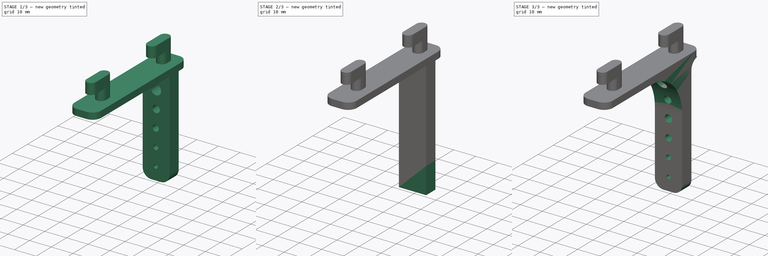
[diagram: build sequence overview — one tinted view per stage of 3, left to right]
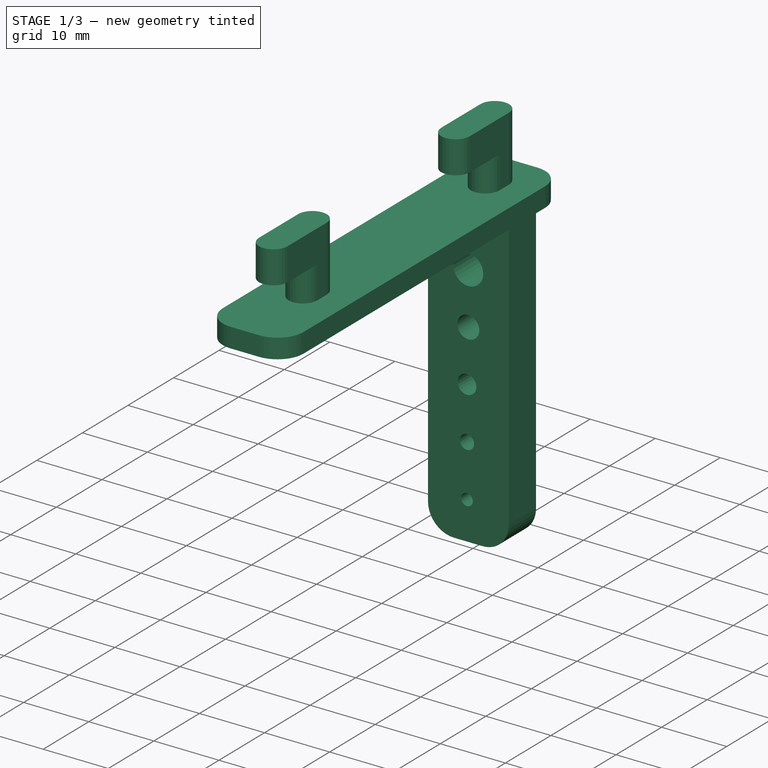
[diagram: stage 1 of 3 — iso view after this stage's code; geometry added in this stage tinted green]
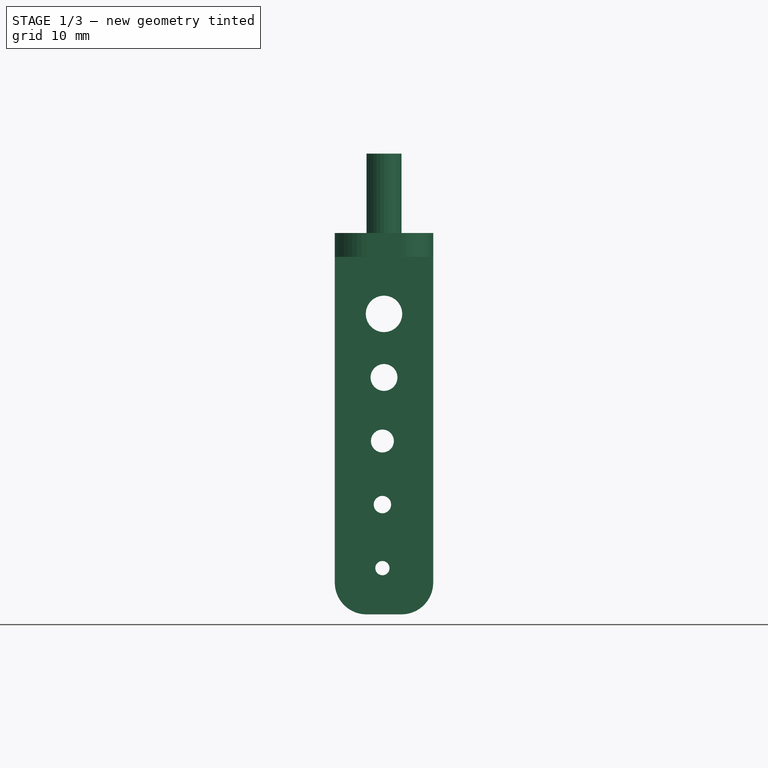
[diagram: stage 1 of 3 — front view after this stage's code; geometry added in this stage tinted green]
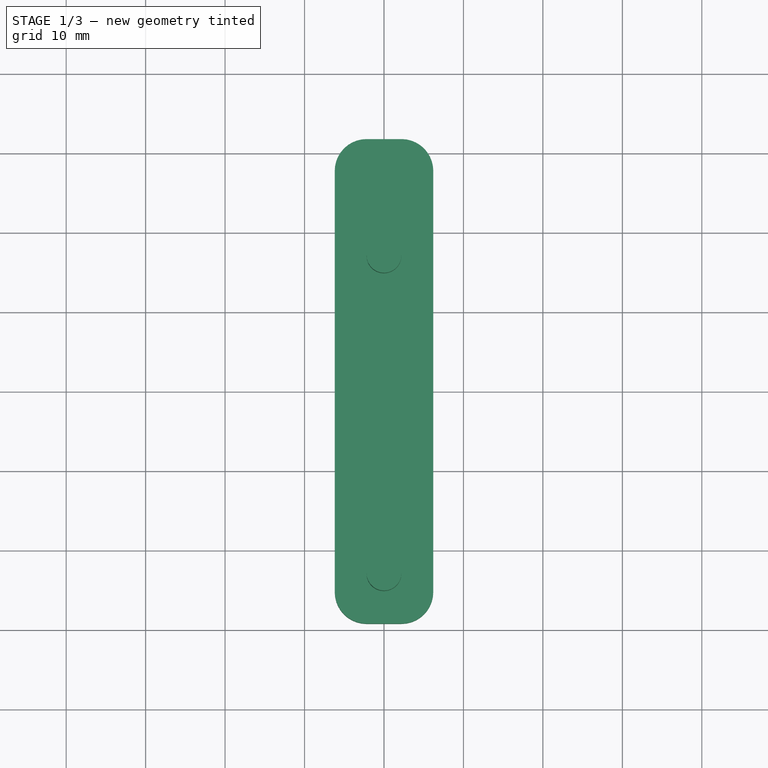
[diagram: stage 1 of 3 — top view after this stage's code; geometry added in this stage tinted green]
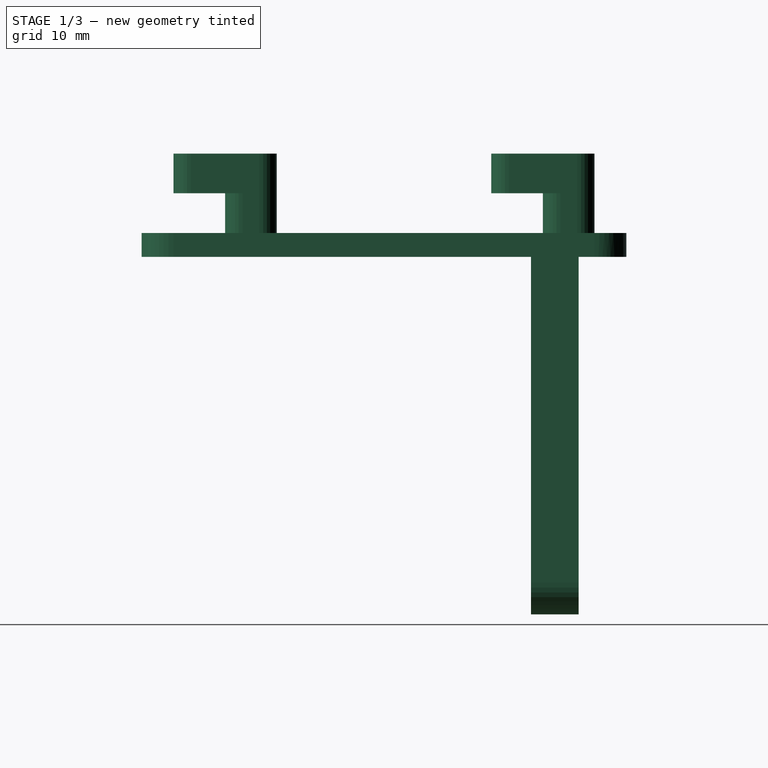
[diagram: stage 1 of 3 — right view after this stage's code; geometry added in this stage tinted green]
FCSTD DOCUMENT  (FreeCAD 1.0R39109 (Git))
Label: 00_Allen_Key_Mount
License: All rights reserved
LicenseURL: https://en.wikipedia.org/wiki/All_rights_reserved
objects: Sketcher::SketchObject×4, PartDesign::Pocket×2, PartDesign::Pad×2, Part::Feature×1, PartDesign::FeatureBase×1, PartDesign::Body×1
note: 24 computed .brp shape members not serialized (recipe doc carries the construction recipe); baked Part::Feature solids carry a one-line shape summary decoded from their .brp

FEATURE [Part::Feature] allen_key_holder001_solid004  label="allen_key_holder001 (Solid)004"
  shape: bbox 12.4 x 61 x 58 mm, 534 faces (baked)
FEATURE [PartDesign::FeatureBase] BaseFeature
  BaseFeature = -> allen_key_holder001_solid004
  Placement = pos=(-2.2,-36,3) rot=(0,0,1;0rad)
  Suppressed = false
FEATURE [Sketcher::SketchObject] Sketch
  ArcFitTolerance = 1e-06
  AttachmentSupport = -> [BaseFeature]
  FullyConstrained = true
  MakeInternals = false
  MapMode = 5
  Placement = pos=(6.2,-36,3) rot=(0.57735,0.57735,0.57735;2.0944rad)
  sketch-geometry (8):
    g0: LineSegment StartX=36 StartY=-3 StartZ=0 EndX=36 EndY=-48 EndZ=0
    g1: LineSegment StartX=36 StartY=-48 StartZ=0 EndX=85 EndY=-48 EndZ=0
    g2: LineSegment StartX=85 StartY=-48 StartZ=0 EndX=85 EndY=-3 EndZ=0
    g3: LineSegment StartX=85 StartY=-3 StartZ=0 EndX=36 EndY=-3 EndZ=0
    g4: LineSegment StartX=91 StartY=-3 StartZ=0 EndX=91 EndY=-48 EndZ=0
    g5: LineSegment StartX=91 StartY=-48 StartZ=0 EndX=97 EndY=-48 EndZ=0
    g6: LineSegment StartX=97 StartY=-48 StartZ=0 EndX=97 EndY=-3 EndZ=0
    g7: LineSegment StartX=97 StartY=-3 StartZ=0 EndX=91 EndY=-3 EndZ=0
  constraints (24):
    c: Coincident(g0,g1)
    c: Coincident(g1,g2)
    c: Coincident(g2,g3)
    c: Coincident(g3,g0)
    c: Vertical(g0)
    c: Vertical(g2)
    c: Horizontal(g1)
    c: Horizontal(g3)
    c: Distance(g0,g2) = 49
    c: Distance(g1,g3) = 45
    c: DistanceY(g0,g-1) = 3
    c: DistanceX(g-1,g0) = 36
    c: Coincident(g4,g5)
    c: Coincident(g5,g6)
    c: Coincident(g6,g7)
    c: Coincident(g7,g4)
    c: Vertical(g4)
    c: Vertical(g6)
    c: Horizontal(g5)
    c: Horizontal(g7)
    c: Distance(g4,g6) = 6
    c: Distance(g5,g7) = 45
    c: DistanceY(g4,g-1) = 3
    c: DistanceX(g-1,g4) = 91
FEATURE [PartDesign::Pocket] Pocket
  BaseFeature = -> BaseFeature
  Direction = (-1,0,0)
  Length = 13
  Length2 = 5
  Placement = pos=(-2.2,-36,3) rot=(0,0,1;0rad)
  Profile = -> Sketch
  ReferenceAxis = -> Sketch [N_Axis]
  Refine = true
  Suppressed = false
  Type = 0
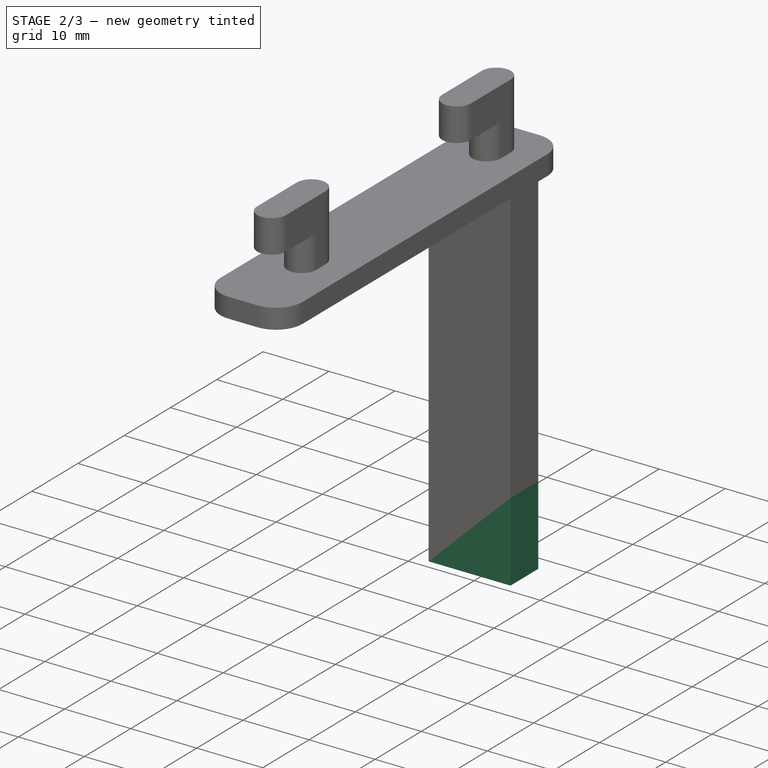
[diagram: stage 2 of 3 — iso view after this stage's code; geometry added in this stage tinted green]
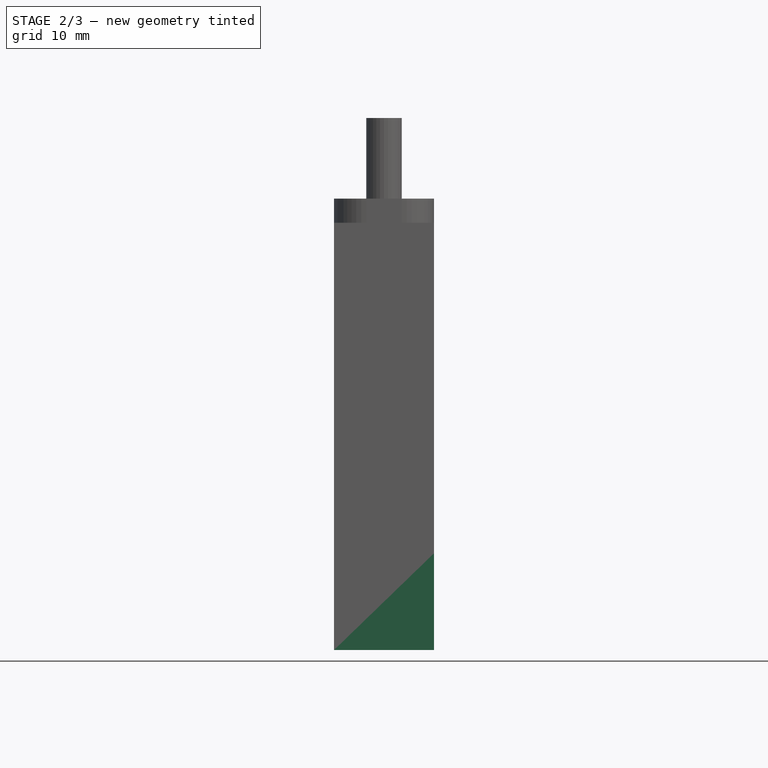
[diagram: stage 2 of 3 — front view after this stage's code; geometry added in this stage tinted green]
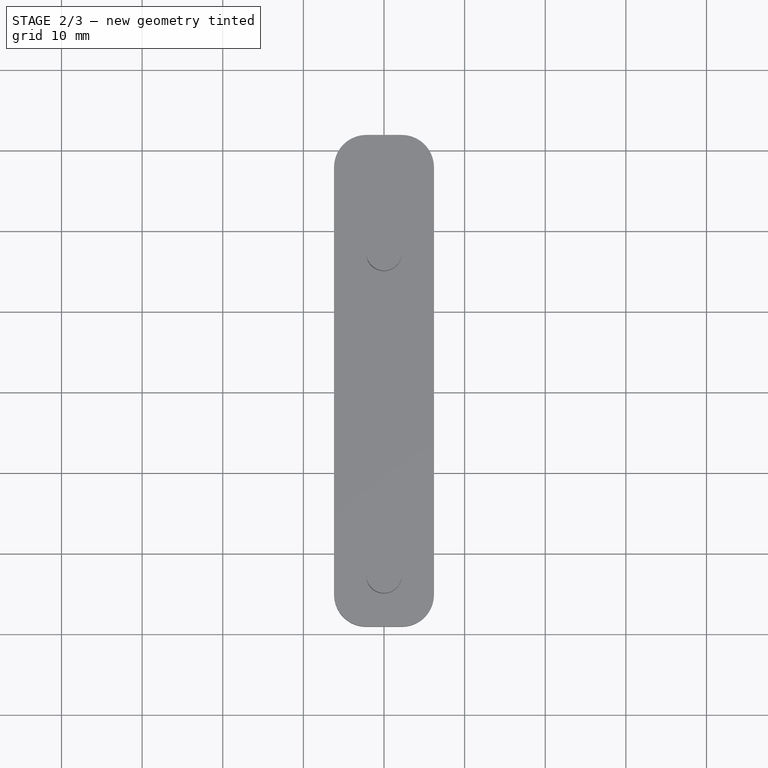
[diagram: stage 2 of 3 — top view after this stage's code; geometry added in this stage tinted green]
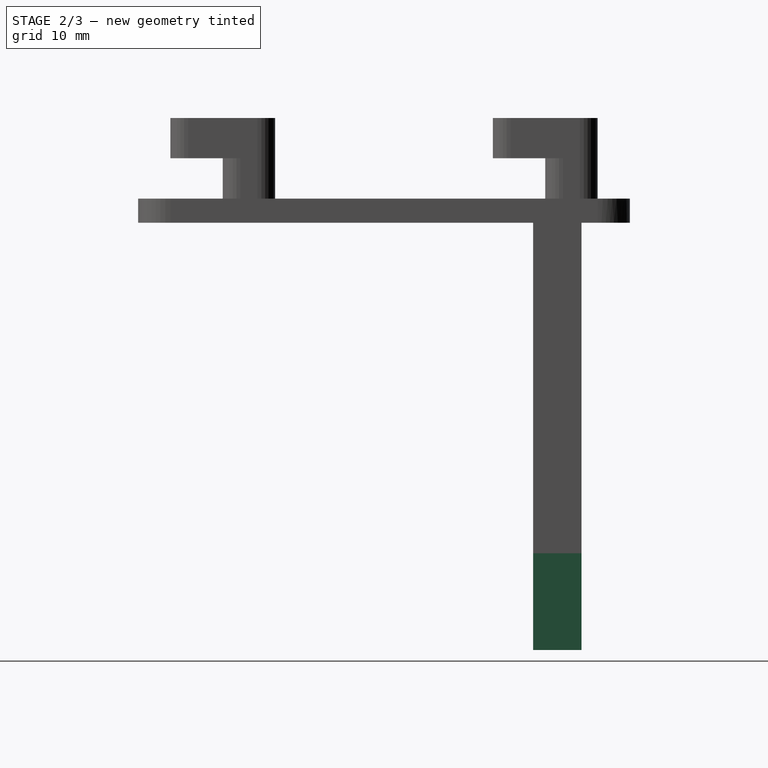
[diagram: stage 2 of 3 — right view after this stage's code; geometry added in this stage tinted green]
FEATURE [Sketcher::SketchObject] Sketch001
  ArcFitTolerance = 1e-06
  AttachmentSupport = -> [Pocket]
  FullyConstrained = true
  MakeInternals = false
  MapMode = 5
  Placement = pos=(-2.2,49,3) rot=(1,0,0;1.5708rad)
  sketch-geometry (4):
    g0: LineSegment StartX=-4 StartY=-3 StartZ=0 EndX=-4 EndY=-56 EndZ=0
    g1: LineSegment StartX=-4 StartY=-56 StartZ=0 EndX=8.4 EndY=-56 EndZ=0
    g2: LineSegment StartX=8.4 StartY=-56 StartZ=0 EndX=8.4 EndY=-3 EndZ=0
    g3: LineSegment StartX=8.4 StartY=-3 StartZ=0 EndX=-4 EndY=-3 EndZ=0
  constraints (12):
    c: Coincident(g0,g1)
    c: Coincident(g1,g2)
    c: Coincident(g2,g3)
    c: Coincident(g3,g0)
    c: Vertical(g0)
    c: Vertical(g2)
    c: Horizontal(g1)
    c: Horizontal(g3)
    c: Distance(g0,g2) = 12.4
    c: Distance(g1,g3) = 53
    c: DistanceY(g0,g-1) = 3
    c: DistanceX(g-1,g2) = 8.4
FEATURE [PartDesign::Pad] Pad
  BaseFeature = -> Pocket
  Direction = (0,-1,2e-16)
  Length = 6
  Length2 = 10
  Placement = pos=(-2.2,-36,3) rot=(0,0,1;0rad)
  Profile = -> Sketch001
  ReferenceAxis = -> Sketch001 [N_Axis]
  Refine = true
  Reversed = true
  Suppressed = false
  Type = 0
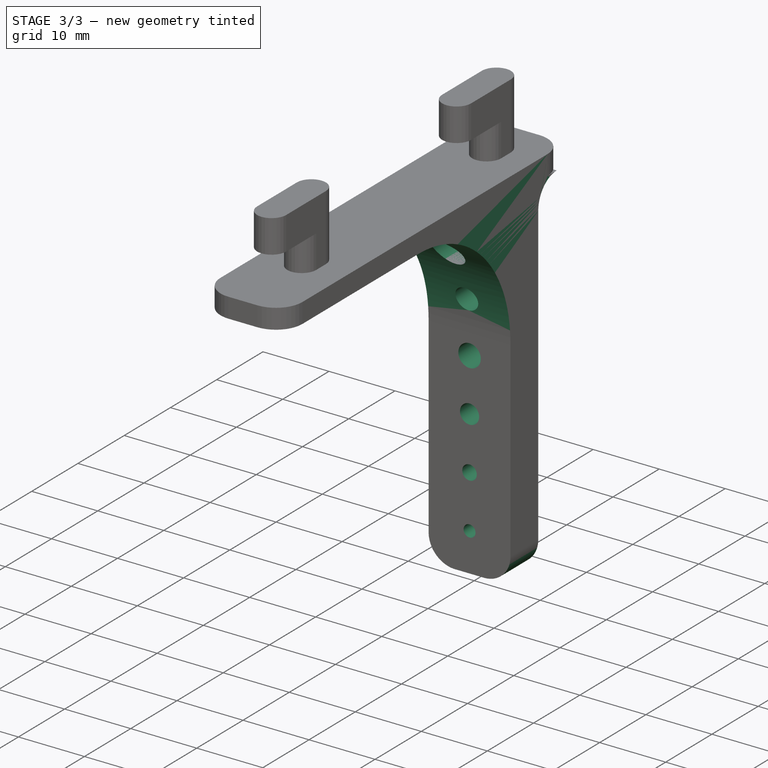
[diagram: stage 3 of 3 — iso view after this stage's code; geometry added in this stage tinted green]
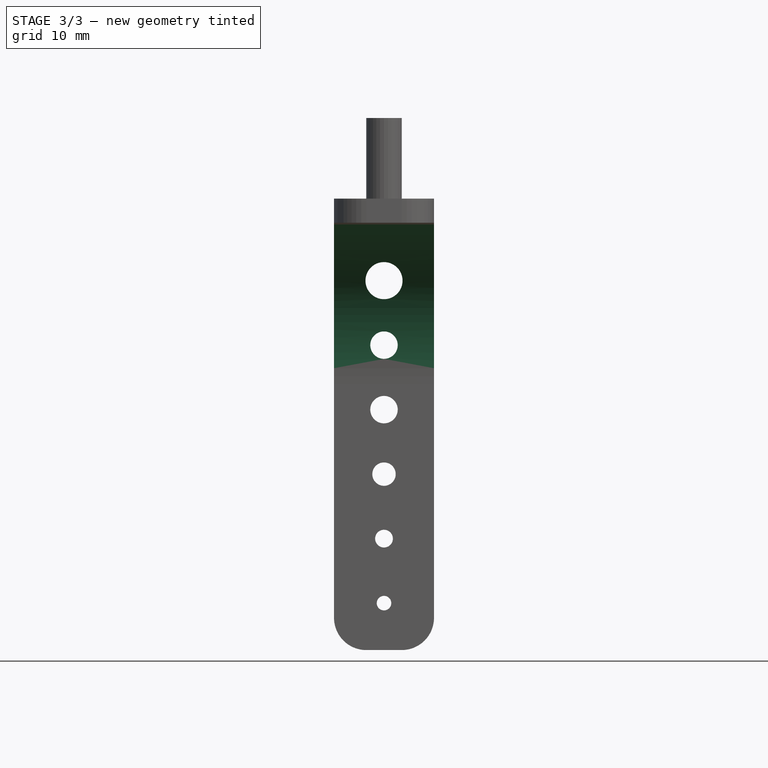
[diagram: stage 3 of 3 — front view after this stage's code; geometry added in this stage tinted green]
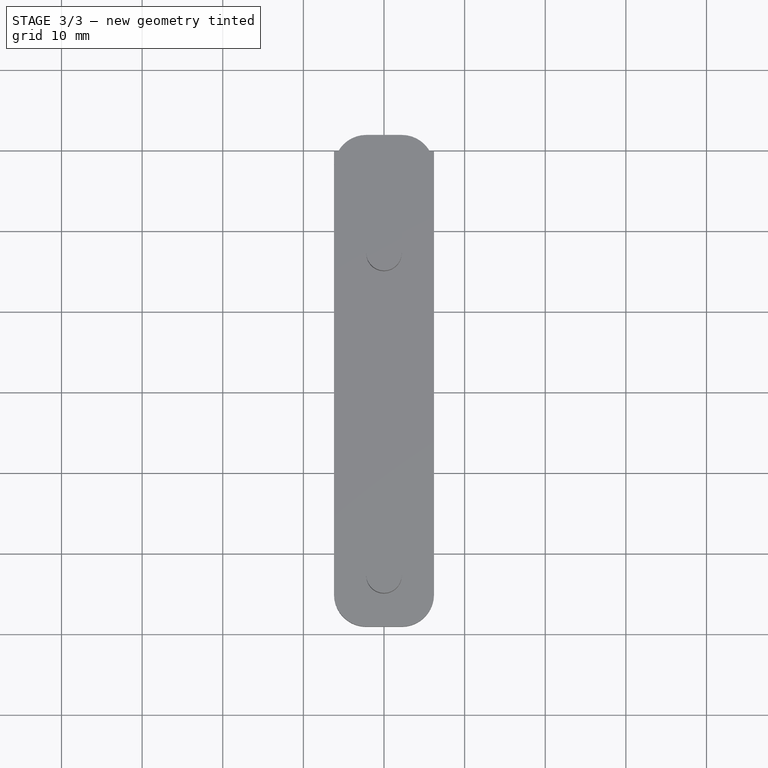
[diagram: stage 3 of 3 — top view after this stage's code; geometry added in this stage tinted green]
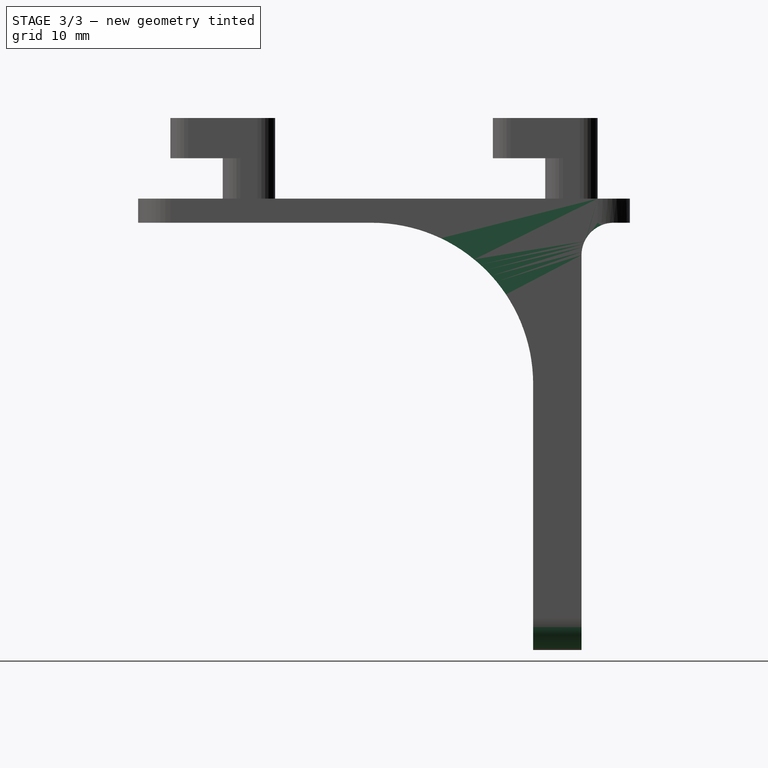
[diagram: stage 3 of 3 — right view after this stage's code; geometry added in this stage tinted green]
FEATURE [Sketcher::SketchObject] Sketch002
  ArcFitTolerance = 1e-06
  AttachmentSupport = -> [Pad]
  FullyConstrained = true
  MakeInternals = false
  MapMode = 5
  Placement = pos=(6.2,-36,3) rot=(0.57735,0.57735,0.57735;2.0944rad)
  sketch-geometry (6):
    g0: LineSegment StartX=65 StartY=-3 StartZ=0 EndX=85 EndY=-3 EndZ=0
    g1: LineSegment StartX=85 StartY=-3 StartZ=0 EndX=85 EndY=-23 EndZ=0
    g2: LineSegment StartX=91 StartY=-3 StartZ=0 EndX=95 EndY=-3 EndZ=0
    g3: LineSegment StartX=91 StartY=-3 StartZ=0 EndX=91 EndY=-7 EndZ=0
    g4: ArcOfCircle CenterX=65 CenterY=-23 CenterZ=0 NormalX=0 NormalY=0 NormalZ=1 AngleXU=0 Radius=20 StartAngle=4e-16 EndAngle=1.5708
    g5: ArcOfCircle CenterX=95 CenterY=-7 CenterZ=0 NormalX=0 NormalY=0 NormalZ=1 AngleXU=0 Radius=4 StartAngle=1.5708 EndAngle=3.14159
  constraints (20):
    c: Distance(g0) = 20
    c: Horizontal(g0)
    c: Distance(g1) = 20
    c: Vertical(g1)
    c: Coincident(g1,g0)
    c: DistanceY(g0,g-1) = 3
    c: DistanceX(g-1,g0) = 85
    c: Distance(g2) = 4
    c: Horizontal(g2)
    c: Distance(g3) = 4
    c: Vertical(g3)
    c: Coincident(g3,g2)
    c: DistanceX(g-1,g2) = 91
    c: DistanceY(g2,g-1) = 3
    c: Radius(g4) = 20
    c: Coincident(g4,g0)
    c: Coincident(g4,g1)
    c: Radius(g5) = 4
    c: Coincident(g3,g5)
    c: Coincident(g5,g2)
FEATURE [PartDesign::Pad] Pad001
  BaseFeature = -> Pad
  Direction = (1,0,0)
  Length = 12.4
  Length2 = 10
  Placement = pos=(-2.2,-36,3) rot=(0,0,1;0rad)
  Profile = -> Sketch002
  ReferenceAxis = -> Sketch002 [N_Axis]
  Refine = true
  Reversed = true
  Suppressed = false
  Type = 0
FEATURE [Sketcher::SketchObject] Sketch003
  ArcFitTolerance = 1e-06
  AttachmentSupport = -> [Pad001]
  FullyConstrained = true
  MakeInternals = false
  MapMode = 5
  Placement = pos=(-2.2,55,3) rot=(0,0.707107,0.707107;3.14159rad)
  sketch-geometry (12):
    g0: Circle CenterX=-2.2 CenterY=-10.18 CenterZ=0 NormalX=0 NormalY=0 NormalZ=1 AngleXU=0 Radius=2.3
    g1: Circle CenterX=-2.2 CenterY=-18.18 CenterZ=0 NormalX=0 NormalY=0 NormalZ=1 AngleXU=0 Radius=1.7
    g2: Circle CenterX=-2.2 CenterY=-26.18 CenterZ=0 NormalX=0 NormalY=0 NormalZ=1 AngleXU=0 Radius=1.7
    g3: Circle CenterX=-2.2 CenterY=-34.18 CenterZ=0 NormalX=0 NormalY=0 NormalZ=1 AngleXU=0 Radius=1.45
    g4: Circle CenterX=-2.2 CenterY=-42.18 CenterZ=0 NormalX=0 NormalY=0 NormalZ=1 AngleXU=0 Radius=1.1
    g5: Circle CenterX=-2.2 CenterY=-50.18 CenterZ=0 NormalX=0 NormalY=0 NormalZ=1 AngleXU=0 Radius=0.9
    g6: LineSegment StartX=-8.4 StartY=-52 StartZ=0 EndX=-8.4 EndY=-56 EndZ=0
    g7: LineSegment StartX=-8.4 StartY=-56 StartZ=0 EndX=-4.4 EndY=-56 EndZ=0
    g8: LineSegment StartX=4 StartY=-52 StartZ=0 EndX=4 EndY=-56 EndZ=0
    g9: LineSegment StartX=4 StartY=-56 StartZ=0 EndX=-1.3e-15 EndY=-56 EndZ=0
    g10: ArcOfCircle CenterX=-4.4 CenterY=-52 CenterZ=0 NormalX=0 NormalY=0 NormalZ=1 AngleXU=0 Radius=4 StartAngle=3.14159 EndAngle=4.71239
    g11: ArcOfCircle CenterX=-4e-16 CenterY=-52 CenterZ=0 NormalX=0 NormalY=0 NormalZ=1 AngleXU=0 Radius=4 StartAngle=4.71239 EndAngle=6.28319
  constraints (38):
    c: Diameter(g0) = 4.6
    c: DistanceY(g0,g-1) = 10.18
    c: DistanceX(g0,g-1) = 2.2
    c: Diameter(g1) = 3.4
    c: Diameter(g2) = 3.4
    c: Diameter(g3) = 2.9
    c: Diameter(g4) = 2.2
    c: Diameter(g5) = 1.8
    c: DistanceY(g1,g0) = 8
    c: DistanceY(g2,g1) = 8
    c: DistanceY(g3,g2) = 8
    c: DistanceY(g4,g3) = 8
    c: DistanceY(g5,g4) = 8
    c: DistanceX(g0,g1) = 0
    c: DistanceX(g1,g2) = 0
    c: DistanceX(g2,g3) = 0
    c: DistanceX(g3,g4) = 0
    c: DistanceX(g4,g5) = 0
    c: Distance(g6) = 4
    c: Vertical(g6)
    c: Distance(g7) = 4
    c: Horizontal(g7)
    c: Coincident(g7,g6)
    c: Distance(g8) = 4
    c: Vertical(g8)
    c: Distance(g9) = 4
    c: Horizontal(g9)
    c: Coincident(g9,g8)
    c: DistanceY(g7,g5) = 5.82
    c: DistanceY(g9,g5) = 5.82
    c: DistanceX(g6,g5) = 6.2
    c: DistanceX(g5,g8) = 6.2
    c: Coincident(g10,g6)
    c: Coincident(g10,g7)
    c: Coincident(g11,g8)
    c: Coincident(g11,g9)
    c: DistanceY(g7,g10) = 4
    c: DistanceY(g9,g11) = 4
FEATURE [PartDesign::Pocket] Pocket001
  BaseFeature = -> Pad001
  Direction = (0,-1,2e-16)
  Length = 5
  Length2 = 5
  Placement = pos=(-2.2,-36,3) rot=(0,0,1;0rad)
  Profile = -> Sketch003
  ReferenceAxis = -> Sketch003 [N_Axis]
  Refine = true
  Suppressed = false
  Type = 1
FEATURE [PartDesign::Body] Body
  AllowCompound = false
  BaseFeature = -> allen_key_holder001_solid004
  Group = -> [BaseFeature,Sketch,Pocket,Sketch001,Pad,Sketch002,Pad001,Sketch003,Pocket001]
  Origin = -> Origin
  Tip = -> Pocket001
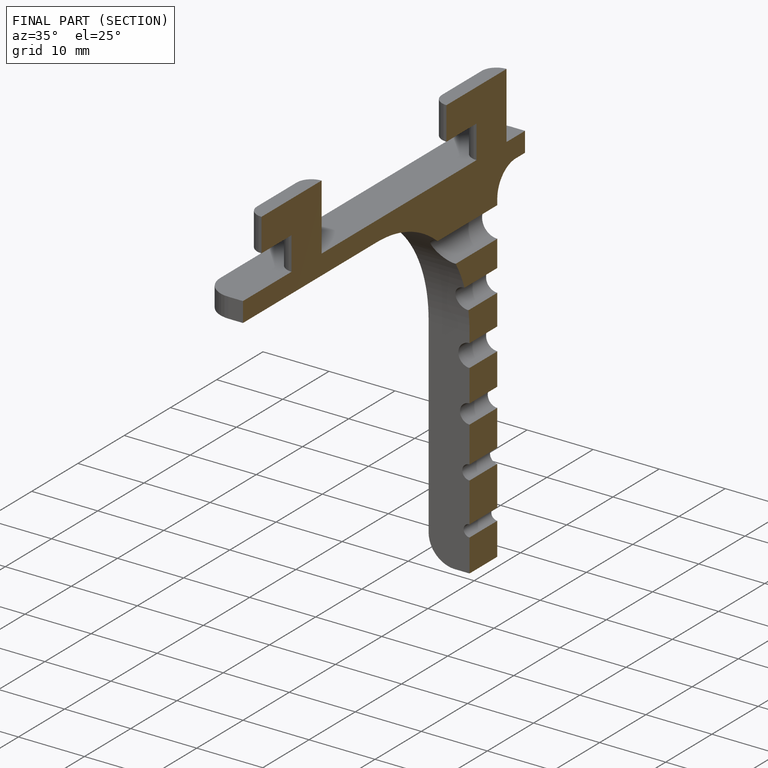
[diagram: finished part — half-section view (interior)]
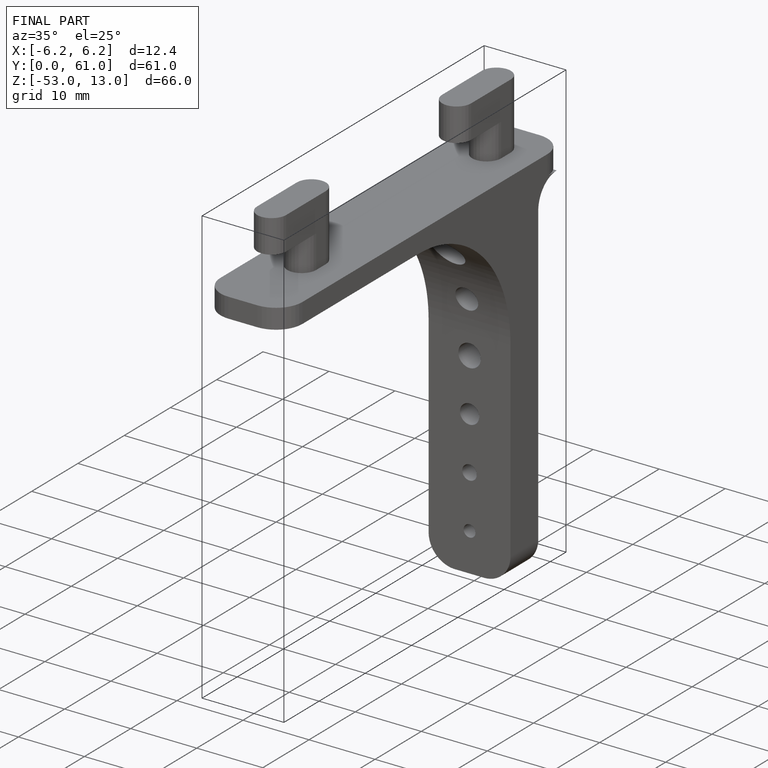
[diagram: finished part — iso view with bounding-box wireframe]
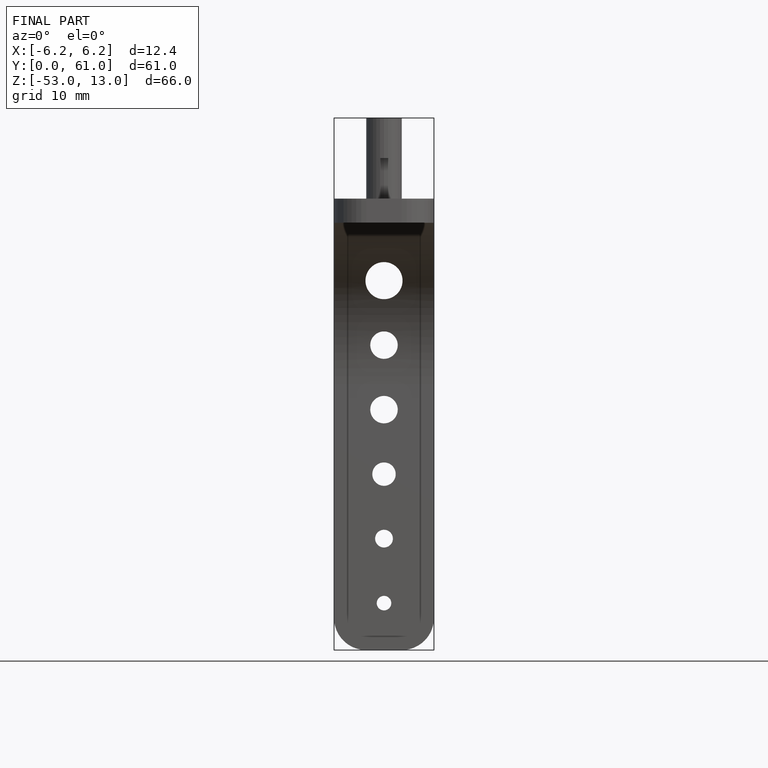
[diagram: finished part — front view with bounding-box wireframe]
